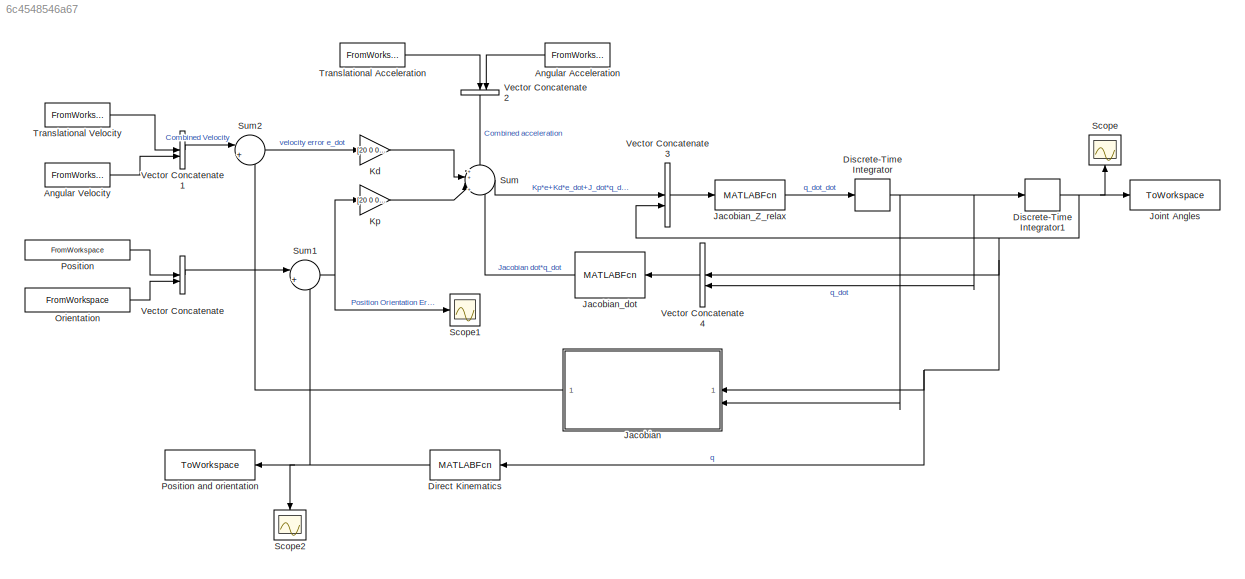
MODEL mdl_6c4548546a67
KIND model
CONFIG AbsTol = auto
CONFIG EnableMultiTasking = off
CONFIG FixedStep = 0.001
CONFIG MaxStep = auto
CONFIG MinStep = auto
CONFIG RelTol = 1e-3
CONFIG SampleTimeConstraint = Unconstrained
CONFIG SolverName = ode1
CONFIG StartTime = 0.0
CONFIG StopTime = 4
BLOCK [FromWorkspace] Angular Acceleration
  NameLocation = top
  VariableName = [t,theta_d_dot_dot]
BLOCK [FromWorkspace] Angular Velocity
  VariableName = [t,theta_d_dot]
BLOCK [MATLABFcn] Direct Kinematics
  MATLABFcn = direct_kin
  OutputDimensions = 3
BLOCK [DiscreteIntegrator] Discrete-Time Integrator
  ICPrevOutput = DiscIntNeverNeededParam
  ICPrevScaledInput = DiscIntNeverNeededParam
  InitialCondition = [0;0;0;0]
  InitialConditionSetting = Auto
  SampleTime = Tc
BLOCK [DiscreteIntegrator] Discrete-Time Integrator1
  ICPrevOutput = DiscIntNeverNeededParam
  ICPrevScaledInput = DiscIntNeverNeededParam
  InitialCondition = q0
  InitialConditionSetting = Auto
  LimitOutput = on
  LowerSaturationLimit = [-inf; -inf; 0.25; -inf]
  SampleTime = Tc
  UpperSaturationLimit = [inf;inf;1;inf]
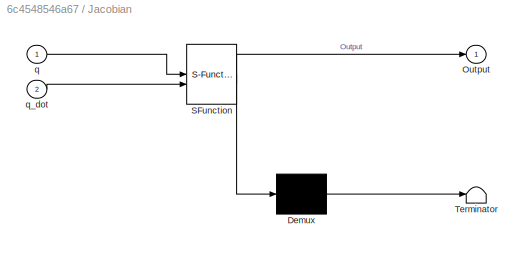
BLOCK [SubSystem] Jacobian 
  ErrorFcn = Stateflow.Translate.translate
  PermitHierarchicalResolution = ExplicitOnly
  SFBlockType = MATLAB Function
  TreatAsAtomicUnit = on
BLOCK [Demux] Jacobian / Demux 
  Outputs = 1
BLOCK [S-Function] Jacobian / SFunction 
  EnableBusSupport = on
  FunctionName = sf_sfun
  PortCounts = [2 2]
  SFcnIsStateOwnerBlock = off
  SFunctionDeploymentMode = off
  Tag = Stateflow S-Function 2
BLOCK [Terminator] Jacobian / Terminator 
BLOCK [Outport] Jacobian /Output
BLOCK [Inport] Jacobian /q
BLOCK [Inport] Jacobian /q_dot
  Port = 2
BLOCK [MATLABFcn] Jacobian_Z_relax
  MATLABFcn = jacobian_z_relax
  OutputDimensions = 4
BLOCK [MATLABFcn] Jacobian_dot
  MATLABFcn = jacobian_dot
  OutputDimensions = 3
BLOCK [ToWorkspace] Joint Angles
  FixptAsFi = on
  MaxDataPoints = inf
  SampleTime = -1
  Save2DSignal = 2-D array (concatenate along first dimension)
  VariableName = Angles
BLOCK [Gain] Kd
  Gain = [20 0 0 ;0 20 0 ;0 0 20 ]
  Multiplication = Matrix(K*u)
BLOCK [Gain] Kp
  Gain = [20 0 0 ;0 20 0 ;0 0 20]
  Multiplication = Matrix(K*u)
BLOCK [FromWorkspace] Orientation
  VariableName = [t,theta_d]
BLOCK [FromWorkspace] Position
  VariableName = [t,pd(:,1),pd(:,2)]
BLOCK [ToWorkspace] Position and orientation
  FixptAsFi = on
  MaxDataPoints = inf
  NameLocation = top
  SampleTime = -1
  VariableName = Pos_O
BLOCK [Scope] Scope
  Floating = off
  NameLocation = right
  NumInputPorts = 1
  ScopeSpecificationString = Simulink.scopes.TimeScopeBlockCfg('CurrentConfiguration', extmgr.ConfigurationSet(extmgr.Configuration('Core','General UI',true),extmgr.Configuration('Core','Source UI',true),extmgr.Configuration('Sources','WiredSimulink',true,'DataLoggingVariableName','ScopeData2'),extmgr.Configuration('Visuals','Time Domain',true,'SerializedDisplays',{struct('MinYLimReal','-2.16306','MaxYLimReal','6.58143','YLab...<+1410ch>
BLOCK [Scope] Scope1
  Floating = off
  NumInputPorts = 1
  ScopeSpecificationString = Simulink.scopes.TimeScopeBlockCfg('CurrentConfiguration', extmgr.ConfigurationSet(extmgr.Configuration('Core','General UI',true),extmgr.Configuration('Core','Source UI',true),extmgr.Configuration('Sources','WiredSimulink',true,'DataLoggingVariableName','ScopeData1'),extmgr.Configuration('Visuals','Time Domain',true,'SerializedDisplays',{struct('MinYLimReal','-0.0075','MaxYLimReal','0.00738','YLabe...<+1408ch>
BLOCK [Scope] Scope2
  Floating = off
  NameLocation = left
  NumInputPorts = 1
  ScopeSpecificationString = Simulink.scopes.TimeScopeBlockCfg('CurrentConfiguration', extmgr.ConfigurationSet(extmgr.Configuration('Core','General UI',true),extmgr.Configuration('Core','Source UI',true),extmgr.Configuration('Sources','WiredSimulink',true),extmgr.Configuration('Visuals','Time Domain',true,'SerializedDisplays',{struct('MinYLimReal','-1.33708','MaxYLimReal','4.03375','YLabelReal','','MinYLimMag','0.00000','MaxY...<+1412ch>
BLOCK [Sum] Sum
  Inputs = ++|+-
BLOCK [Sum] Sum1
  Inputs = |+-
BLOCK [Sum] Sum2
  Inputs = |+-
BLOCK [FromWorkspace] Translational Acceleration 
  VariableName = [t,pd_dot_dot(:,1),pd_dot_dot(:,2)]
BLOCK [FromWorkspace] Translational Velocity
  VariableName = [t,pd_dot(:,1),pd_dot(:,2)]
BLOCK [Concatenate] Vector Concatenate
BLOCK [Concatenate] Vector Concatenate1
BLOCK [Concatenate] Vector Concatenate2
  NameLocation = left
BLOCK [Concatenate] Vector Concatenate3
BLOCK [Concatenate] Vector Concatenate4
LINE Angular Acceleration:1 -> Vector Concatenate2:2
LINE Angular Velocity:1 -> Vector Concatenate1:2
NET Direct Kinematics:1 -> Position and orientation:1, Scope2:1, Sum1:2
NET Discrete-Time Integrator1:1 -> Direct Kinematics:1, Jacobian :1, Joint Angles:1, Scope:1, Vector Concatenate3:2, Vector Concatenate4:1
NET Discrete-Time Integrator:1 -> Discrete-Time Integrator1:1, Jacobian :2, Vector Concatenate4:2
LINE Jacobian :1 -> Sum2:2
LINE Jacobian_Z_relax:1 -> Discrete-Time Integrator:1
LINE Jacobian_dot:1 -> Sum:4
LINE Kd:1 -> Sum:2
LINE Kp:1 -> Sum:3
LINE Orientation:1 -> Vector Concatenate:2
LINE Position:1 -> Vector Concatenate:1
NET Sum1:1 -> Kp:1, Scope1:1
LINE Sum2:1 -> Kd:1
LINE Sum:1 -> Vector Concatenate3:1
LINE Translational Acceleration :1 -> Vector Concatenate2:1
LINE Translational Velocity:1 -> Vector Concatenate1:1
LINE Vector Concatenate1:1 -> Sum2:1
LINE Vector Concatenate2:1 -> Sum:1
LINE Vector Concatenate3:1 -> Jacobian_Z_relax:1
LINE Vector Concatenate4:1 -> Jacobian_dot:1
LINE Vector Concatenate:1 -> Sum1:1
note: NET lines group one-source signal fan-out (src -> all destinations, sorted); 1:1 wires keep LINE
CHART Jacobian  states=1 transitions=1
  STATE_LABEL 'eML_blk_kernel()'
  STATE_LABEL 'SCRIPT:\nfunction Output= fcn(q,q_dot)\n\n    Theta1=q(1);\n    \n    Theta2=q(2);\n\n    a1=0.5;\n    \n    a2=0.5;\n    \n    Jacobian=[- a2*sin(Theta1 + Theta2) - a1*sin(Theta1), -a2*sin(Theta1 + Theta2), 0, 0; a2*cos(Theta1 + Theta2) + a1*cos(Theta1), a2*cos(Theta1 + Theta2), 0,0; 1, 1, 0, 1];\n    \n    Output=Jacobian*q_dot;\n\nend\n'
CHART  states=0 transitions=0
